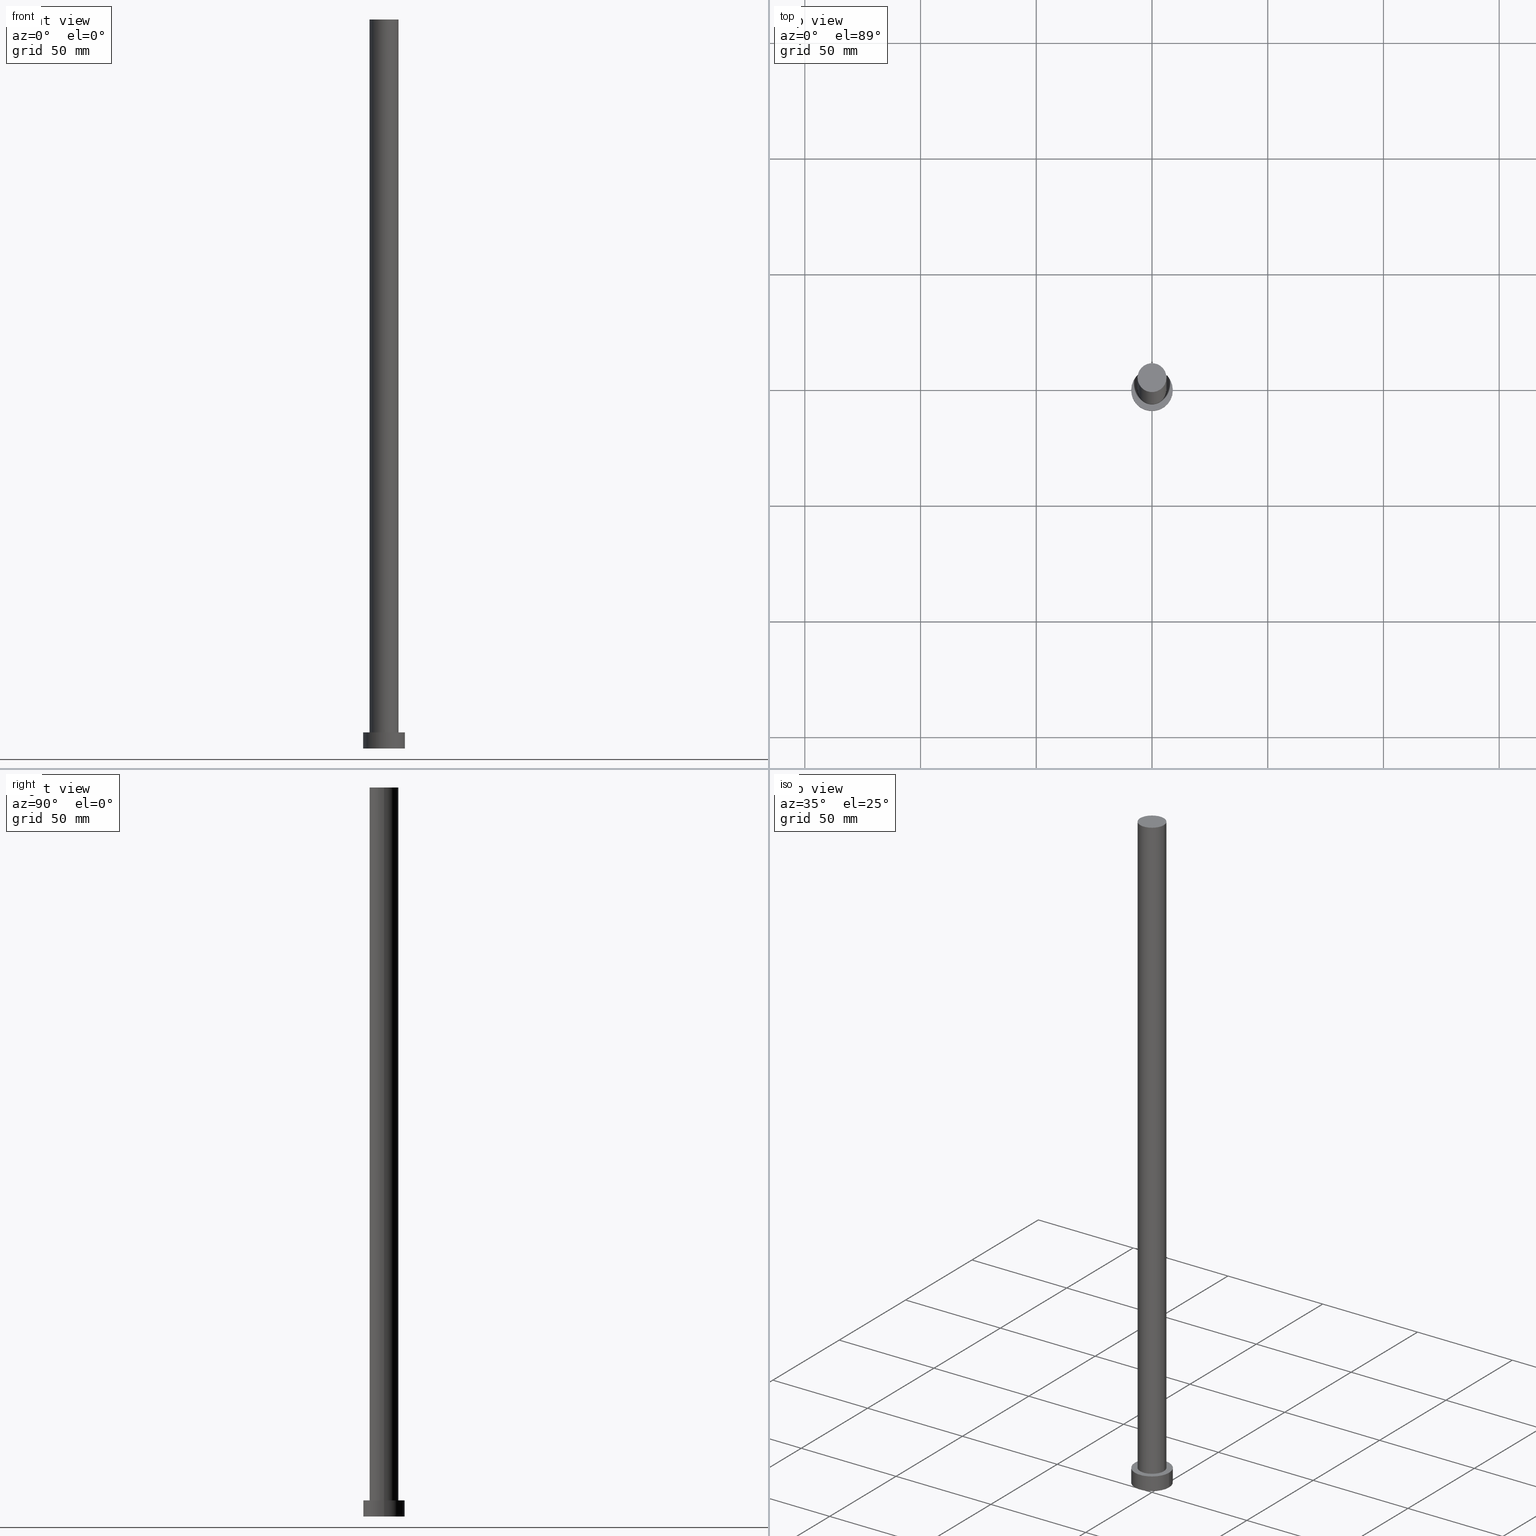
[diagram: canonical four-view strip — front | top / right | iso, engineering-drawing reading convention]
A machine part, canonical four-view strip (front | top / right | iso — engineering-drawing reading convention). The complete STEP part file that produces these views, byte-faithful:
ISO-10303-21;
HEADER;
FILE_DESCRIPTION (( 'STEP AP203' ),
    '1' );
FILE_NAME ('fb45.STEP',
    '2023-02-13T11:37:30',
    ( '' ),
    ( '' ),
    'SwSTEP 2.0',
    'SolidWorks 2019',
    '' );
FILE_SCHEMA (( 'CONFIG_CONTROL_DESIGN' ));
ENDSEC;

DATA;
#1 = LOCAL_TIME ( 12, 37, 30.00000000000000000, #204 ) ;
#2 = ORIENTED_EDGE ( 'NONE', *, *, #165, .F. ) ;
#3 = ORIENTED_EDGE ( 'NONE', *, *, #191, .F. ) ;
#4 = EDGE_CURVE ( 'NONE', #215, #129, #5, .T. ) ;
#5 = LINE ( 'NONE', #76, #187 ) ;
#6 = ORIENTED_EDGE ( 'NONE', *, *, #133, .T. ) ;
#7 = ADVANCED_FACE ( 'NONE', ( #98 ), #150, .F. ) ;
#8 = DIRECTION ( 'NONE',  ( 0.000000000000000000, 0.000000000000000000, 1.000000000000000000 ) ) ;
#9 = CYLINDRICAL_SURFACE ( 'NONE', #51, 6.250000000000000000 ) ;
#10 =( GEOMETRIC_REPRESENTATION_CONTEXT ( 3 ) GLOBAL_UNCERTAINTY_ASSIGNED_CONTEXT ( ( #155 ) ) GLOBAL_UNIT_ASSIGNED_CONTEXT ( ( #125, #106, #107 ) ) REPRESENTATION_CONTEXT ( 'NONE', 'WORKASPACE' ) );
#11 = DIRECTION ( 'NONE',  ( 0.000000000000000000, 0.000000000000000000, 1.000000000000000000 ) ) ;
#12 = CARTESIAN_POINT ( 'NONE',  ( -9.000000000000000000, 0.000000000000000000, 0.000000000000000000 ) ) ;
#13 = DIRECTION ( 'NONE',  ( 1.000000000000000000, 0.000000000000000000, 0.000000000000000000 ) ) ;
#14 = CC_DESIGN_APPROVAL ( #202, ( #121 ) ) ;
#15 = EDGE_CURVE ( 'NONE', #21, #129, #39, .T. ) ;
#16 = DATE_AND_TIME ( #88, #40 ) ;
#17 = EDGE_CURVE ( 'NONE', #152, #215, #128, .T. ) ;
#18 = AXIS2_PLACEMENT_3D ( 'NONE', #157, #102, #136 ) ;
#19 = SHAPE_DEFINITION_REPRESENTATION ( #100, #55 ) ;
#20 = CALENDAR_DATE ( 2023, 13, 2 ) ;
#21 = VERTEX_POINT ( 'NONE', #12 ) ;
#22 = PERSON_AND_ORGANIZATION_ROLE ( 'design_owner' ) ;
#23 = PERSON_AND_ORGANIZATION ( #72, #213 ) ;
#24 = VERTEX_POINT ( 'NONE', #118 ) ;
#25 = DIRECTION ( 'NONE',  ( 0.000000000000000000, 0.000000000000000000, 1.000000000000000000 ) ) ;
#26 = FACE_OUTER_BOUND ( 'NONE', #61, .T. ) ;
#27 = CARTESIAN_POINT ( 'NONE',  ( 6.250000000000000000, 7.654042494670957606E-16, 7.000000000000000000 ) ) ;
#28 = VECTOR ( 'NONE', #77, 1000.000000000000000 ) ;
#29 = DIRECTION ( 'NONE',  ( 1.000000000000000000, 0.000000000000000000, -0.000000000000000000 ) ) ;
#30 = DIRECTION ( 'NONE',  ( 1.000000000000000000, 0.000000000000000000, 0.000000000000000000 ) ) ;
#31 = PRODUCT_RELATED_PRODUCT_CATEGORY ( 'detail', '', ( #138 ) ) ;
#32 = DIRECTION ( 'NONE',  ( -0.000000000000000000, -0.000000000000000000, -1.000000000000000000 ) ) ;
#33 = CIRCLE ( 'NONE', #188, 6.250000000000000000 ) ;
#34 = MECHANICAL_CONTEXT ( 'NONE', #228, 'mechanical' ) ;
#35 = PERSON_AND_ORGANIZATION ( #72, #213 ) ;
#36 = EDGE_LOOP ( 'NONE', ( #134, #113, #91, #60 ) ) ;
#37 = ORIENTED_EDGE ( 'NONE', *, *, #15, .T. ) ;
#38 = ORIENTED_EDGE ( 'NONE', *, *, #137, .F. ) ;
#39 = CIRCLE ( 'NONE', #45, 9.000000000000000000 ) ;
#40 = LOCAL_TIME ( 12, 37, 30.00000000000000000, #151 ) ;
#41 = CIRCLE ( 'NONE', #172, 6.250000000000000000 ) ;
#42 = PERSON_AND_ORGANIZATION_ROLE ( 'design_supplier' ) ;
#43 = ORIENTED_EDGE ( 'NONE', *, *, #243, .T. ) ;
#44 = CARTESIAN_POINT ( 'NONE',  ( 6.250000000000000000, 7.654042494670957606E-16, 315.0000000000000000 ) ) ;
#45 = AXIS2_PLACEMENT_3D ( 'NONE', #225, #116, #99 ) ;
#46 = CARTESIAN_POINT ( 'NONE',  ( 0.000000000000000000, 0.000000000000000000, 0.000000000000000000 ) ) ;
#47 = CARTESIAN_POINT ( 'NONE',  ( 0.000000000000000000, 0.000000000000000000, 7.000000000000000000 ) ) ;
#48 = CARTESIAN_POINT ( 'NONE',  ( 6.250000000000000000, 7.654042494670957606E-16, 315.0000000000000000 ) ) ;
#49 = FACE_OUTER_BOUND ( 'NONE', #94, .T. ) ;
#50 = FACE_OUTER_BOUND ( 'NONE', #36, .T. ) ;
#51 = AXIS2_PLACEMENT_3D ( 'NONE', #120, #159, #66 ) ;
#52 = APPROVAL_PERSON_ORGANIZATION ( #35, #218, #170 ) ;
#53 = CARTESIAN_POINT ( 'NONE',  ( 0.000000000000000000, 0.000000000000000000, 315.0000000000000000 ) ) ;
#54 = APPROVAL_STATUS ( 'not_yet_approved' ) ;
#55 = ADVANCED_BREP_SHAPE_REPRESENTATION ( 'fb45', ( #85, #83 ), #10 ) ;
#56 = DIRECTION ( 'NONE',  ( 0.000000000000000000, 0.000000000000000000, 1.000000000000000000 ) ) ;
#57 = EDGE_LOOP ( 'NONE', ( #173, #38 ) ) ;
#58 = ORIENTED_EDGE ( 'NONE', *, *, #165, .T. ) ;
#59 = CALENDAR_DATE ( 2023, 13, 2 ) ;
#60 = ORIENTED_EDGE ( 'NONE', *, *, #144, .F. ) ;
#61 = EDGE_LOOP ( 'NONE', ( #2, #239, #6, #43 ) ) ;
#62 = APPLICATION_CONTEXT ( 'configuration controlled 3d designs of mechanical parts and assemblies' ) ;
#63 = DIRECTION ( 'NONE',  ( 0.000000000000000000, 0.000000000000000000, 1.000000000000000000 ) ) ;
#64 = DIRECTION ( 'NONE',  ( 1.000000000000000000, 0.000000000000000000, 0.000000000000000000 ) ) ;
#65 = CYLINDRICAL_SURFACE ( 'NONE', #220, 6.250000000000000000 ) ;
#66 = DIRECTION ( 'NONE',  ( -1.000000000000000000, 0.000000000000000000, 0.000000000000000000 ) ) ;
#67 = CARTESIAN_POINT ( 'NONE',  ( 0.000000000000000000, 0.000000000000000000, 315.0000000000000000 ) ) ;
#68 = VECTOR ( 'NONE', #245, 1000.000000000000000 ) ;
#69 = EDGE_CURVE ( 'NONE', #71, #24, #181, .T. ) ;
#70 = PERSON_AND_ORGANIZATION ( #72, #213 ) ;
#71 = VERTEX_POINT ( 'NONE', #48 ) ;
#72 = PERSON ( 'NEUR�EN�', 'NEUR�EN�', 'NEUR�EN�', ('NEUR�EN�'), ('NEUR�EN�'), ('NEUR�EN�') ) ;
#73 = APPROVAL_DATE_TIME ( #211, #209 ) ;
#74 = ORIENTED_EDGE ( 'NONE', *, *, #17, .F. ) ;
#75 = APPROVAL_ROLE ( '' ) ;
#76 = CARTESIAN_POINT ( 'NONE',  ( 9.000000000000000000, 1.102182119232617714E-15, 7.000000000000000000 ) ) ;
#77 = DIRECTION ( 'NONE',  ( -0.000000000000000000, -0.000000000000000000, -1.000000000000000000 ) ) ;
#78 = FACE_BOUND ( 'NONE', #96, .T. ) ;
#79 = DESIGN_CONTEXT ( 'detailed design', #62, 'design' ) ;
#80 = DIRECTION ( 'NONE',  ( 1.000000000000000000, 0.000000000000000000, 0.000000000000000000 ) ) ;
#81 = CC_DESIGN_PERSON_AND_ORGANIZATION_ASSIGNMENT ( #153, #114, ( #222 ) ) ;
#82 = AXIS2_PLACEMENT_3D ( 'NONE', #196, #156, #80 ) ;
#83 = AXIS2_PLACEMENT_3D ( 'NONE', #230, #56, #127 ) ;
#84 = FACE_OUTER_BOUND ( 'NONE', #115, .T. ) ;
#85 = MANIFOLD_SOLID_BREP ( 'P�idat vysunut�m3', #237 ) ;
#86 = PERSON_AND_ORGANIZATION ( #72, #213 ) ;
#87 = PRODUCT_DEFINITION ( 'NEZN�M�', '', #222, #79 ) ;
#88 = CALENDAR_DATE ( 2023, 13, 2 ) ;
#89 = ADVANCED_FACE ( 'NONE', ( #240 ), #9, .T. ) ;
#90 = ADVANCED_FACE ( 'NONE', ( #49 ), #162, .T. ) ;
#91 = ORIENTED_EDGE ( 'NONE', *, *, #137, .T. ) ;
#92 = DATE_AND_TIME ( #59, #183 ) ;
#93 = CIRCLE ( 'NONE', #229, 9.000000000000000000 ) ;
#94 = EDGE_LOOP ( 'NONE', ( #233, #74, #212, #37 ) ) ;
#95 = COORDINATED_UNIVERSAL_TIME_OFFSET ( 1, 0, .AHEAD. ) ;
#96 = EDGE_LOOP ( 'NONE', ( #217, #3 ) ) ;
#97 = ORIENTED_EDGE ( 'NONE', *, *, #158, .T. ) ;
#98 = FACE_OUTER_BOUND ( 'NONE', #57, .T. ) ;
#99 = DIRECTION ( 'NONE',  ( 1.000000000000000000, 0.000000000000000000, 0.000000000000000000 ) ) ;
#100 = PRODUCT_DEFINITION_SHAPE ( 'NONE', 'NONE',  #87 ) ;
#101 = DIRECTION ( 'NONE',  ( -1.000000000000000000, 0.000000000000000000, 0.000000000000000000 ) ) ;
#102 = DIRECTION ( 'NONE',  ( -0.000000000000000000, -0.000000000000000000, -1.000000000000000000 ) ) ;
#103 = LINE ( 'NONE', #178, #68 ) ;
#104 = DIRECTION ( 'NONE',  ( 1.000000000000000000, 0.000000000000000000, 0.000000000000000000 ) ) ;
#105 = CC_DESIGN_APPROVAL ( #209, ( #222 ) ) ;
#106 =( NAMED_UNIT ( * ) PLANE_ANGLE_UNIT ( ) SI_UNIT ( $, .RADIAN. ) );
#107 =( NAMED_UNIT ( * ) SI_UNIT ( $, .STERADIAN. ) SOLID_ANGLE_UNIT ( ) );
#108 = CC_DESIGN_PERSON_AND_ORGANIZATION_ASSIGNMENT ( #70, #184, ( #121 ) ) ;
#109 = APPLICATION_PROTOCOL_DEFINITION ( 'international standard', 'config_control_design', 1994, #62 ) ;
#110 = EDGE_LOOP ( 'NONE', ( #234, #58, #192, #111 ) ) ;
#111 = ORIENTED_EDGE ( 'NONE', *, *, #133, .F. ) ;
#112 = AXIS2_PLACEMENT_3D ( 'NONE', #180, #145, #13 ) ;
#113 = ORIENTED_EDGE ( 'NONE', *, *, #4, .T. ) ;
#114 = PERSON_AND_ORGANIZATION_ROLE ( 'creator' ) ;
#115 = EDGE_LOOP ( 'NONE', ( #154, #193 ) ) ;
#116 = DIRECTION ( 'NONE',  ( 0.000000000000000000, 0.000000000000000000, 1.000000000000000000 ) ) ;
#117 = AXIS2_PLACEMENT_3D ( 'NONE', #224, #25, #161 ) ;
#118 = CARTESIAN_POINT ( 'NONE',  ( -6.250000000000000000, 0.000000000000000000, 315.0000000000000000 ) ) ;
#119 = DIRECTION ( 'NONE',  ( 1.000000000000000000, 0.000000000000000000, 0.000000000000000000 ) ) ;
#120 = CARTESIAN_POINT ( 'NONE',  ( 0.000000000000000000, 0.000000000000000000, 315.0000000000000000 ) ) ;
#121 = SECURITY_CLASSIFICATION ( '', '', #255 ) ;
#122 = DIRECTION ( 'NONE',  ( -0.000000000000000000, -0.000000000000000000, -1.000000000000000000 ) ) ;
#123 = DIRECTION ( 'NONE',  ( 1.000000000000000000, 0.000000000000000000, -0.000000000000000000 ) ) ;
#124 = CYLINDRICAL_SURFACE ( 'NONE', #238, 9.000000000000000000 ) ;
#125 =( LENGTH_UNIT ( ) NAMED_UNIT ( * ) SI_UNIT ( .MILLI., .METRE. ) );
#126 = DIRECTION ( 'NONE',  ( 0.000000000000000000, 0.000000000000000000, 1.000000000000000000 ) ) ;
#127 = DIRECTION ( 'NONE',  ( 1.000000000000000000, 0.000000000000000000, 0.000000000000000000 ) ) ;
#128 = CIRCLE ( 'NONE', #82, 9.000000000000000000 ) ;
#129 = VERTEX_POINT ( 'NONE', #242 ) ;
#130 = CALENDAR_DATE ( 2023, 13, 2 ) ;
#131 = COORDINATED_UNIVERSAL_TIME_OFFSET ( 1, 0, .AHEAD. ) ;
#132 = VERTEX_POINT ( 'NONE', #199 ) ;
#133 = EDGE_CURVE ( 'NONE', #24, #132, #103, .T. ) ;
#134 = ORIENTED_EDGE ( 'NONE', *, *, #158, .F. ) ;
#135 = PERSON_AND_ORGANIZATION_ROLE ( 'creator' ) ;
#136 = DIRECTION ( 'NONE',  ( -1.000000000000000000, 0.000000000000000000, 0.000000000000000000 ) ) ;
#137 = EDGE_CURVE ( 'NONE', #129, #21, #208, .T. ) ;
#138 = PRODUCT ( 'fb45', 'fb45', '', ( #34 ) ) ;
#139 = CARTESIAN_POINT ( 'NONE',  ( 0.000000000000000000, 0.000000000000000000, 315.0000000000000000 ) ) ;
#140 = AXIS2_PLACEMENT_3D ( 'NONE', #179, #253, #123 ) ;
#141 = CC_DESIGN_SECURITY_CLASSIFICATION ( #121, ( #222 ) ) ;
#142 = PLANE ( 'NONE',  #117 ) ;
#143 = DIRECTION ( 'NONE',  ( 0.000000000000000000, 0.000000000000000000, 1.000000000000000000 ) ) ;
#144 = EDGE_CURVE ( 'NONE', #152, #21, #175, .T. ) ;
#145 = DIRECTION ( 'NONE',  ( 0.000000000000000000, 0.000000000000000000, 1.000000000000000000 ) ) ;
#146 = ADVANCED_FACE ( 'NONE', ( #26 ), #65, .T. ) ;
#147 = LOCAL_TIME ( 12, 37, 30.00000000000000000, #95 ) ;
#148 = APPROVAL_STATUS ( 'not_yet_approved' ) ;
#149 = ADVANCED_FACE ( 'NONE', ( #78, #176 ), #142, .T. ) ;
#150 = PLANE ( 'NONE',  #171 ) ;
#151 = COORDINATED_UNIVERSAL_TIME_OFFSET ( 1, 0, .AHEAD. ) ;
#152 = VERTEX_POINT ( 'NONE', #226 ) ;
#153 = PERSON_AND_ORGANIZATION ( #72, #213 ) ;
#154 = ORIENTED_EDGE ( 'NONE', *, *, #227, .T. ) ;
#155 = UNCERTAINTY_MEASURE_WITH_UNIT (LENGTH_MEASURE( 1.000000000000000082E-05 ), #125, 'distance_accuracy_value', 'NONE');
#156 = DIRECTION ( 'NONE',  ( 0.000000000000000000, 0.000000000000000000, 1.000000000000000000 ) ) ;
#157 = CARTESIAN_POINT ( 'NONE',  ( 0.000000000000000000, 0.000000000000000000, 7.000000000000000000 ) ) ;
#158 = EDGE_CURVE ( 'NONE', #215, #152, #93, .T. ) ;
#159 = DIRECTION ( 'NONE',  ( -0.000000000000000000, -0.000000000000000000, -1.000000000000000000 ) ) ;
#160 = AXIS2_PLACEMENT_3D ( 'NONE', #67, #63, #197 ) ;
#161 = DIRECTION ( 'NONE',  ( 1.000000000000000000, 0.000000000000000000, -0.000000000000000000 ) ) ;
#162 = CYLINDRICAL_SURFACE ( 'NONE', #18, 9.000000000000000000 ) ;
#163 = PERSON_AND_ORGANIZATION ( #72, #213 ) ;
#164 = CC_DESIGN_PERSON_AND_ORGANIZATION_ASSIGNMENT ( #23, #135, ( #87 ) ) ;
#165 = EDGE_CURVE ( 'NONE', #71, #186, #198, .T. ) ;
#166 = APPROVAL_ROLE ( '' ) ;
#167 = DATE_AND_TIME ( #231, #1 ) ;
#168 = LOCAL_TIME ( 12, 37, 30.00000000000000000, #131 ) ;
#169 = PERSON_AND_ORGANIZATION ( #72, #213 ) ;
#170 = APPROVAL_ROLE ( '' ) ;
#171 = AXIS2_PLACEMENT_3D ( 'NONE', #232, #143, #29 ) ;
#172 = AXIS2_PLACEMENT_3D ( 'NONE', #53, #126, #30 ) ;
#173 = ORIENTED_EDGE ( 'NONE', *, *, #15, .F. ) ;
#174 = DIRECTION ( 'NONE',  ( -0.000000000000000000, -0.000000000000000000, -1.000000000000000000 ) ) ;
#175 = LINE ( 'NONE', #219, #195 ) ;
#176 = FACE_OUTER_BOUND ( 'NONE', #189, .T. ) ;
#177 = CARTESIAN_POINT ( 'NONE',  ( 0.000000000000000000, 0.000000000000000000, 7.000000000000000000 ) ) ;
#178 = CARTESIAN_POINT ( 'NONE',  ( -6.250000000000000000, 0.000000000000000000, 315.0000000000000000 ) ) ;
#179 = CARTESIAN_POINT ( 'NONE',  ( 0.000000000000000000, 0.000000000000000000, 315.0000000000000000 ) ) ;
#180 = CARTESIAN_POINT ( 'NONE',  ( 0.000000000000000000, 0.000000000000000000, 7.000000000000000000 ) ) ;
#181 = CIRCLE ( 'NONE', #160, 6.250000000000000000 ) ;
#182 = CC_DESIGN_APPROVAL ( #218, ( #87 ) ) ;
#183 = LOCAL_TIME ( 12, 37, 30.00000000000000000, #210 ) ;
#184 = PERSON_AND_ORGANIZATION_ROLE ( 'classification_officer' ) ;
#185 = APPROVAL_DATE_TIME ( #235, #218 ) ;
#186 = VERTEX_POINT ( 'NONE', #27 ) ;
#187 = VECTOR ( 'NONE', #174, 1000.000000000000000 ) ;
#188 = AXIS2_PLACEMENT_3D ( 'NONE', #177, #11, #104 ) ;
#189 = EDGE_LOOP ( 'NONE', ( #236, #97 ) ) ;
#190 = CIRCLE ( 'NONE', #112, 6.250000000000000000 ) ;
#191 = EDGE_CURVE ( 'NONE', #186, #132, #33, .T. ) ;
#192 = ORIENTED_EDGE ( 'NONE', *, *, #191, .T. ) ;
#193 = ORIENTED_EDGE ( 'NONE', *, *, #69, .T. ) ;
#194 = CC_DESIGN_PERSON_AND_ORGANIZATION_ASSIGNMENT ( #163, #22, ( #138 ) ) ;
#195 = VECTOR ( 'NONE', #122, 1000.000000000000000 ) ;
#196 = CARTESIAN_POINT ( 'NONE',  ( 0.000000000000000000, 0.000000000000000000, 7.000000000000000000 ) ) ;
#197 = DIRECTION ( 'NONE',  ( 1.000000000000000000, 0.000000000000000000, 0.000000000000000000 ) ) ;
#198 = LINE ( 'NONE', #44, #28 ) ;
#199 = CARTESIAN_POINT ( 'NONE',  ( -6.250000000000000000, 0.000000000000000000, 7.000000000000000000 ) ) ;
#200 = ADVANCED_FACE ( 'NONE', ( #84 ), #244, .T. ) ;
#201 = DIRECTION ( 'NONE',  ( 0.000000000000000000, 0.000000000000000000, 1.000000000000000000 ) ) ;
#202 = APPROVAL ( #54, 'NEUR�EN�' ) ;
#203 = CARTESIAN_POINT ( 'NONE',  ( 9.000000000000000000, 1.102182119232617714E-15, 7.000000000000000000 ) ) ;
#204 = COORDINATED_UNIVERSAL_TIME_OFFSET ( 1, 0, .AHEAD. ) ;
#205 = APPLICATION_PROTOCOL_DEFINITION ( 'international standard', 'config_control_design', 1994, #228 ) ;
#206 = CC_DESIGN_PERSON_AND_ORGANIZATION_ASSIGNMENT ( #214, #42, ( #222 ) ) ;
#207 = CARTESIAN_POINT ( 'NONE',  ( 0.000000000000000000, 0.000000000000000000, 7.000000000000000000 ) ) ;
#208 = CIRCLE ( 'NONE', #246, 9.000000000000000000 ) ;
#209 = APPROVAL ( #254, 'NEUR�EN�' ) ;
#210 = COORDINATED_UNIVERSAL_TIME_OFFSET ( 1, 0, .AHEAD. ) ;
#211 = DATE_AND_TIME ( #20, #168 ) ;
#212 = ORIENTED_EDGE ( 'NONE', *, *, #144, .T. ) ;
#213 = ORGANIZATION ( 'NEUR�EN�', 'NEUR�EN�', '' ) ;
#214 = PERSON_AND_ORGANIZATION ( #72, #213 ) ;
#215 = VERTEX_POINT ( 'NONE', #203 ) ;
#216 = DATE_TIME_ROLE ( 'creation_date' ) ;
#217 = ORIENTED_EDGE ( 'NONE', *, *, #243, .F. ) ;
#218 = APPROVAL ( #148, 'NEUR�EN�' ) ;
#219 = CARTESIAN_POINT ( 'NONE',  ( -9.000000000000000000, 0.000000000000000000, 7.000000000000000000 ) ) ;
#220 = AXIS2_PLACEMENT_3D ( 'NONE', #139, #221, #101 ) ;
#221 = DIRECTION ( 'NONE',  ( -0.000000000000000000, -0.000000000000000000, -1.000000000000000000 ) ) ;
#222 = PRODUCT_DEFINITION_FORMATION_WITH_SPECIFIED_SOURCE ( 'LIBOVOLN�', '', #138, .NOT_KNOWN. ) ;
#223 = CC_DESIGN_DATE_AND_TIME_ASSIGNMENT ( #92, #216, ( #87 ) ) ;
#224 = CARTESIAN_POINT ( 'NONE',  ( 0.000000000000000000, 0.000000000000000000, 7.000000000000000000 ) ) ;
#225 = CARTESIAN_POINT ( 'NONE',  ( 0.000000000000000000, 0.000000000000000000, 0.000000000000000000 ) ) ;
#226 = CARTESIAN_POINT ( 'NONE',  ( -9.000000000000000000, 0.000000000000000000, 7.000000000000000000 ) ) ;
#227 = EDGE_CURVE ( 'NONE', #24, #71, #41, .T. ) ;
#228 = APPLICATION_CONTEXT ( 'configuration controlled 3d designs of mechanical parts and assemblies' ) ;
#229 = AXIS2_PLACEMENT_3D ( 'NONE', #47, #201, #119 ) ;
#230 = CARTESIAN_POINT ( 'NONE',  ( 0.000000000000000000, 0.000000000000000000, 0.000000000000000000 ) ) ;
#231 = CALENDAR_DATE ( 2023, 13, 2 ) ;
#232 = CARTESIAN_POINT ( 'NONE',  ( 0.000000000000000000, 0.000000000000000000, 0.000000000000000000 ) ) ;
#233 = ORIENTED_EDGE ( 'NONE', *, *, #4, .F. ) ;
#234 = ORIENTED_EDGE ( 'NONE', *, *, #69, .F. ) ;
#235 = DATE_AND_TIME ( #130, #147 ) ;
#236 = ORIENTED_EDGE ( 'NONE', *, *, #17, .T. ) ;
#237 = CLOSED_SHELL ( 'NONE', ( #89, #247, #90, #149, #7, #146, #200 ) ) ;
#238 = AXIS2_PLACEMENT_3D ( 'NONE', #207, #32, #248 ) ;
#239 = ORIENTED_EDGE ( 'NONE', *, *, #227, .F. ) ;
#240 = FACE_OUTER_BOUND ( 'NONE', #110, .T. ) ;
#241 = APPROVAL_PERSON_ORGANIZATION ( #86, #202, #166 ) ;
#242 = CARTESIAN_POINT ( 'NONE',  ( 9.000000000000000000, 1.102182119232617714E-15, 0.000000000000000000 ) ) ;
#243 = EDGE_CURVE ( 'NONE', #132, #186, #190, .T. ) ;
#244 = PLANE ( 'NONE',  #140 ) ;
#245 = DIRECTION ( 'NONE',  ( -0.000000000000000000, -0.000000000000000000, -1.000000000000000000 ) ) ;
#246 = AXIS2_PLACEMENT_3D ( 'NONE', #46, #8, #64 ) ;
#247 = ADVANCED_FACE ( 'NONE', ( #50 ), #124, .T. ) ;
#248 = DIRECTION ( 'NONE',  ( -1.000000000000000000, 0.000000000000000000, 0.000000000000000000 ) ) ;
#249 = CC_DESIGN_DATE_AND_TIME_ASSIGNMENT ( #167, #252, ( #121 ) ) ;
#250 = APPROVAL_DATE_TIME ( #16, #202 ) ;
#251 = APPROVAL_PERSON_ORGANIZATION ( #169, #209, #75 ) ;
#252 = DATE_TIME_ROLE ( 'classification_date' ) ;
#253 = DIRECTION ( 'NONE',  ( 0.000000000000000000, 0.000000000000000000, 1.000000000000000000 ) ) ;
#254 = APPROVAL_STATUS ( 'not_yet_approved' ) ;
#255 = SECURITY_CLASSIFICATION_LEVEL ( 'unclassified' ) ;
ENDSEC;
END-ISO-10303-21;
